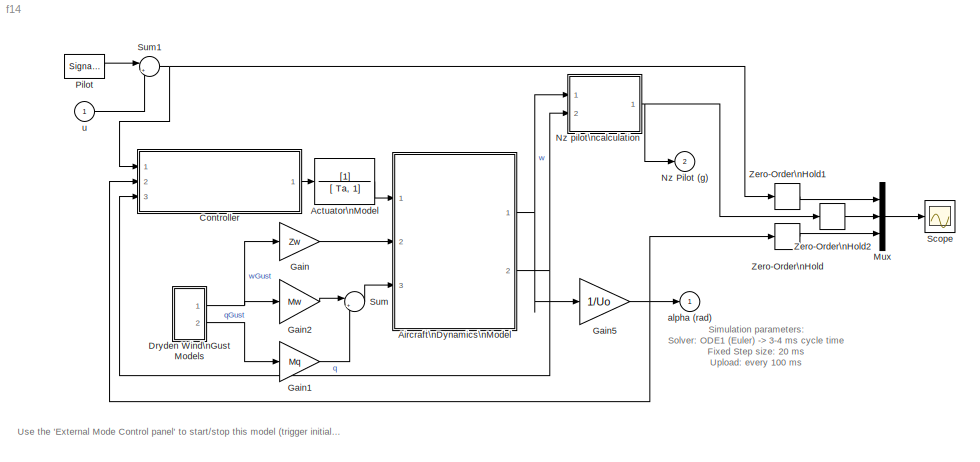
MODEL f14
KIND model
CONFIG PreLoadFcn = f14dat
BLOCK [TransferFcn] Actuator\nModel
  Denominator = [ Ta, 1]
  SID = 2
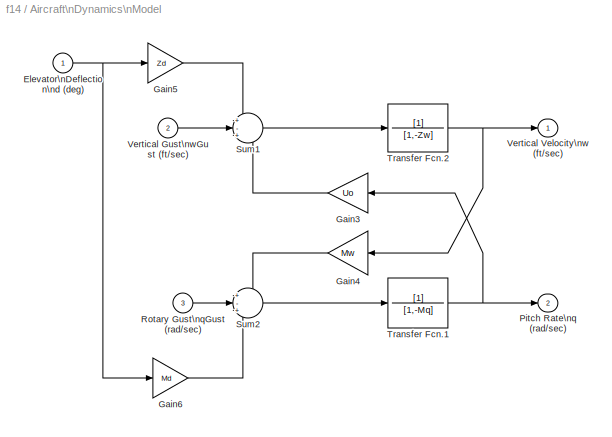
BLOCK [SubSystem] Aircraft\nDynamics\nModel
  Ports = [3, 2]
  RequestExecContextInheritance = off
  SID = 3
BLOCK [Inport] Aircraft\nDynamics\nModel/Elevator\nDeflection\nd (deg)
  IconDisplay = Port number
  SID = 4
BLOCK [Gain] Aircraft\nDynamics\nModel/Gain3
  Gain = Uo
  SID = 7
BLOCK [Gain] Aircraft\nDynamics\nModel/Gain4
  Gain = Mw
  SID = 8
BLOCK [Gain] Aircraft\nDynamics\nModel/Gain5
  Gain = Zd
  SID = 9
BLOCK [Gain] Aircraft\nDynamics\nModel/Gain6
  Gain = Md
  SID = 10
BLOCK [Outport] Aircraft\nDynamics\nModel/Pitch Rate\nq (rad//sec)
  IconDisplay = Port number
  InitialOutput = 0
  Port = 2
  SID = 16
BLOCK [Inport] Aircraft\nDynamics\nModel/Rotary Gust\nqGust (rad//sec)
  IconDisplay = Port number
  Port = 3
  SID = 6
BLOCK [Sum] Aircraft\nDynamics\nModel/Sum1
  IconShape = round
  Inputs = +-+
  Ports = [3, 1]
  SID = 11
BLOCK [Sum] Aircraft\nDynamics\nModel/Sum2
  IconShape = round
  Inputs = +-+
  Ports = [3, 1]
  SID = 12
BLOCK [TransferFcn] Aircraft\nDynamics\nModel/Transfer Fcn.1
  Denominator = [1,-Mq]
  SID = 13
BLOCK [TransferFcn] Aircraft\nDynamics\nModel/Transfer Fcn.2
  Denominator = [1,-Zw]
  SID = 14
BLOCK [Inport] Aircraft\nDynamics\nModel/Vertical Gust\nwGust (ft//sec)
  IconDisplay = Port number
  Port = 2
  SID = 5
BLOCK [Outport] Aircraft\nDynamics\nModel/Vertical Velocity\nw (ft//sec)
  IconDisplay = Port number
  InitialOutput = 0
  SID = 15
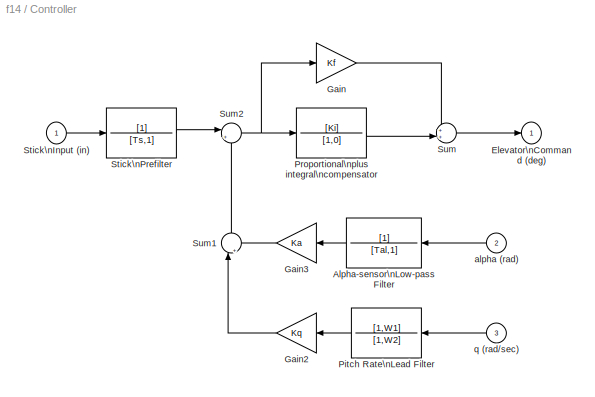
BLOCK [SubSystem] Controller
  Ports = [3, 1]
  RequestExecContextInheritance = off
  SID = 17
BLOCK [TransferFcn] Controller/Alpha-sensor\nLow-pass Filter
  Denominator = [Tal,1]
  SID = 21
BLOCK [Outport] Controller/Elevator\nCommand (deg)
  IconDisplay = Port number
  InitialOutput = 0
  SID = 31
BLOCK [Gain] Controller/Gain
  Gain = Kf
  SID = 22
BLOCK [Gain] Controller/Gain2
  Gain = Kq
  SID = 23
BLOCK [Gain] Controller/Gain3
  Gain = Ka
  SID = 24
BLOCK [TransferFcn] Controller/Pitch Rate\nLead Filter
  Denominator = [1,W2]
  Numerator = [1,W1]
  SID = 25
BLOCK [TransferFcn] Controller/Proportional\nplus integral\ncompensator
  Denominator = [1,0]
  Numerator = [Ki]
  SID = 26
BLOCK [Inport] Controller/Stick\nInput (in)
  IconDisplay = Port number
  SID = 18
BLOCK [TransferFcn] Controller/Stick\nPrefilter
  Denominator = [Ts,1]
  SID = 27
BLOCK [Sum] Controller/Sum
  IconShape = round
  Inputs = ++|
  Ports = [2, 1]
  SID = 28
BLOCK [Sum] Controller/Sum1
  IconShape = round
  Inputs = |++
  Ports = [2, 1]
  SID = 29
BLOCK [Sum] Controller/Sum2
  IconShape = round
  Inputs = |+-
  Ports = [2, 1]
  SID = 30
BLOCK [Inport] Controller/alpha (rad)
  IconDisplay = Port number
  Port = 2
  SID = 19
BLOCK [Inport] Controller/q (rad//sec)
  IconDisplay = Port number
  Port = 3
  SID = 20
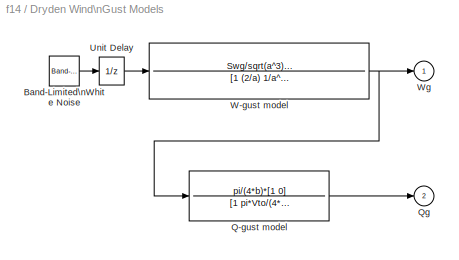
BLOCK [SubSystem] Dryden Wind\nGust Models
  Ports = [0, 2]
  RequestExecContextInheritance = off
  SID = 32
BLOCK [Reference] Dryden Wind\nGust Models/Band-Limited\nWhite Noise  REF=simulink/Sources/Band-Limited\nWhite Noise
  Cov = 1
  FunctionWithSeparateData = off
  Ports = [0, 1]
  RTWMemSecDataConstants = Inherit from model
  RTWMemSecDataInternal = Inherit from model
  RTWMemSecDataParameters = Inherit from model
  RTWMemSecFuncExecute = Inherit from model
  RTWMemSecFuncInitTerm = Inherit from model
  SID = 33
  ShowPortLabels = FromPortIcon
  SourceBlock = simulink/Sources/Band-Limited\nWhite Noise
  SourceProductBaseCode = SL
  SourceProductName = Simulink
  SourceType = Band-Limited White Noise.
  SystemSampleTime = -1
  Ts = 0.1
  VectorParams1D = on
  seed = [23341]
BLOCK [TransferFcn] Dryden Wind\nGust Models/Q-gust model
  Denominator = [1 pi*Vto/(4*b)]
  Numerator = pi/(4*b)*[1 0]
  SID = 34
BLOCK [Outport] Dryden Wind\nGust Models/Qg
  IconDisplay = Port number
  InitialOutput = 0
  Port = 2
  SID = 38
BLOCK [UnitDelay] Dryden Wind\nGust Models/Unit Delay
  SID = 35
  SampleTime = 0.1
BLOCK [TransferFcn] Dryden Wind\nGust Models/W-gust model
  Denominator = [1 (2/a) 1/a^2]
  Numerator = Swg/sqrt(a^3)*[sqrt(3)*a,1]
  SID = 36
BLOCK [Outport] Dryden Wind\nGust Models/Wg
  IconDisplay = Port number
  InitialOutput = 0
  SID = 37
BLOCK [Gain] Gain
  Gain = Zw
  SID = 39
BLOCK [Gain] Gain1
  Gain = Mq
  SID = 40
BLOCK [Gain] Gain2
  Gain = Mw
  SID = 41
BLOCK [Gain] Gain5
  Gain = 1/Uo
  SID = 42
BLOCK [Mux] Mux
  DisplayOption = bar
  Inputs = 3
  Ports = [3, 1]
  SID = 43
BLOCK [Outport] Nz Pilot (g)
  IconDisplay = Port number
  InitialOutput = 0
  Port = 2
  SID = 63
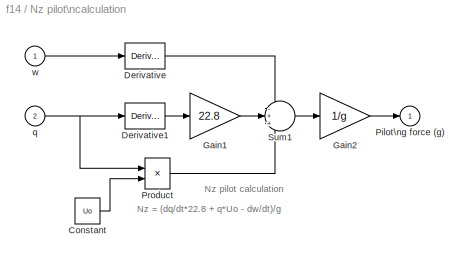
BLOCK [SubSystem] Nz pilot\ncalculation
  Ports = [2, 1]
  RequestExecContextInheritance = off
  SID = 44
BLOCK [Constant] Nz pilot\ncalculation/Constant
  SID = 47
  Value = Uo
BLOCK [Derivative] Nz pilot\ncalculation/Derivative
  SID = 48
BLOCK [Derivative] Nz pilot\ncalculation/Derivative1
  SID = 49
BLOCK [Gain] Nz pilot\ncalculation/Gain1
  Gain = 22.8
  SID = 50
BLOCK [Gain] Nz pilot\ncalculation/Gain2
  Gain = 1/g
  SID = 51
BLOCK [Outport] Nz pilot\ncalculation/Pilot\ng force (g)
  IconDisplay = Port number
  InitialOutput = 0
  SID = 54
BLOCK [Product] Nz pilot\ncalculation/Product
  Ports = [2, 1]
  RndMeth = Floor
  SID = 52
BLOCK [Sum] Nz pilot\ncalculation/Sum1
  IconShape = round
  Inputs = -++
  Ports = [3, 1]
  SID = 53
BLOCK [Inport] Nz pilot\ncalculation/q
  IconDisplay = Port number
  Port = 2
  SID = 46
BLOCK [Inport] Nz pilot\ncalculation/w
  IconDisplay = Port number
  SID = 45
BLOCK [SignalGenerator] Pilot
  Frequency = 0.500000
  Ports = [0, 1]
  SID = 55
  Units = rad/sec
  WaveForm = square
BLOCK [Scope] Scope
  Floating = off
  NumInputPorts = 1
  Ports = [1]
  SID = 56
  ScopeSpecificationString = C++SS(StrPVP('Location','[791, 422, 1181, 720]'),StrPVP('Open','off'),MxPVP('AxesTitles',54,'struct(''axes1'',''%<SignalLabel>'')'),StrPVP('TimeRange','20'),StrPVP('YMin','-15'),StrPVP('YMax','15'),StrPVP('DataFormat','StructureWithTime'),StrPVP('LimitDataPoints','on'),StrPVP('Decimation','1'),StrPVP('BlockParamSampleInput','off'))
BLOCK [Sum] Sum
  IconShape = round
  Inputs = |++
  Ports = [2, 1]
  SID = 57
BLOCK [Sum] Sum1
  IconShape = round
  Inputs = |++
  Ports = [2, 1]
  SID = 58
BLOCK [ZeroOrderHold] Zero-Order\nHold
  SID = 59
  SampleTime = 0.1
BLOCK [ZeroOrderHold] Zero-Order\nHold1
  SID = 60
  SampleTime = 0.1
BLOCK [ZeroOrderHold] Zero-Order\nHold2
  SID = 61
  SampleTime = 0.1
BLOCK [Outport] alpha (rad)
  IconDisplay = Port number
  InitialOutput = 0
  SID = 62
BLOCK [Inport] u
  IconDisplay = Port number
  SID = 1
ANNOTATION (root): Simulation parameters:\nSolver: ODE1 (Euler) -> 3-4 ms cycle time\nFixed Step size: 20 ms\nUpload: every 100 ms
ANNOTATION (root): Use the 'External Mode Control panel' to start/stop this model (trigger initially unarmed)
ANNOTATION Nz pilot\ncalculation: Nz = (dq/dt*22.8 + q*Uo - dw/dt)/g
ANNOTATION Nz pilot\ncalculation: Nz pilot calculation
LINE Actuator\nModel:1 -> Aircraft\nDynamics\nModel:1
NET Aircraft\nDynamics\nModel/Elevator\nDeflection\nd (deg):1 -> Aircraft\nDynamics\nModel/Gain5:1, Aircraft\nDynamics\nModel/Gain6:1
LINE Aircraft\nDynamics\nModel/Gain3:1 -> Aircraft\nDynamics\nModel/Sum1:3
LINE Aircraft\nDynamics\nModel/Gain4:1 -> Aircraft\nDynamics\nModel/Sum2:1
LINE Aircraft\nDynamics\nModel/Gain5:1 -> Aircraft\nDynamics\nModel/Sum1:1
LINE Aircraft\nDynamics\nModel/Gain6:1 -> Aircraft\nDynamics\nModel/Sum2:3
LINE Aircraft\nDynamics\nModel/Rotary Gust\nqGust (rad//sec):1 -> Aircraft\nDynamics\nModel/Sum2:2
LINE Aircraft\nDynamics\nModel/Sum1:1 -> Aircraft\nDynamics\nModel/Transfer Fcn.2:1
LINE Aircraft\nDynamics\nModel/Sum2:1 -> Aircraft\nDynamics\nModel/Transfer Fcn.1:1
NET Aircraft\nDynamics\nModel/Transfer Fcn.1:1 -> Aircraft\nDynamics\nModel/Gain3:1, Aircraft\nDynamics\nModel/Pitch Rate\nq (rad//sec):1
NET Aircraft\nDynamics\nModel/Transfer Fcn.2:1 -> Aircraft\nDynamics\nModel/Gain4:1, Aircraft\nDynamics\nModel/Vertical Velocity\nw (ft//sec):1
LINE Aircraft\nDynamics\nModel/Vertical Gust\nwGust (ft//sec):1 -> Aircraft\nDynamics\nModel/Sum1:2
NET Aircraft\nDynamics\nModel:1 -> Gain5:1, Nz pilot\ncalculation:1
NET Aircraft\nDynamics\nModel:2 -> Controller:3, Nz pilot\ncalculation:2
LINE Controller/Alpha-sensor\nLow-pass Filter:1 -> Controller/Gain3:1
LINE Controller/Gain2:1 -> Controller/Sum1:1
LINE Controller/Gain3:1 -> Controller/Sum1:2
LINE Controller/Gain:1 -> Controller/Sum:1
LINE Controller/Pitch Rate\nLead Filter:1 -> Controller/Gain2:1
LINE Controller/Proportional\nplus integral\ncompensator:1 -> Controller/Sum:2
LINE Controller/Stick\nInput (in):1 -> Controller/Stick\nPrefilter:1
LINE Controller/Stick\nPrefilter:1 -> Controller/Sum2:1
LINE Controller/Sum1:1 -> Controller/Sum2:2
NET Controller/Sum2:1 -> Controller/Gain:1, Controller/Proportional\nplus integral\ncompensator:1
LINE Controller/Sum:1 -> Controller/Elevator\nCommand (deg):1
LINE Controller/alpha (rad):1 -> Controller/Alpha-sensor\nLow-pass Filter:1
LINE Controller/q (rad//sec):1 -> Controller/Pitch Rate\nLead Filter:1
LINE Controller:1 -> Actuator\nModel:1
LINE Dryden Wind\nGust Models/Band-Limited\nWhite Noise:1 -> Dryden Wind\nGust Models/Unit Delay:1
LINE Dryden Wind\nGust Models/Q-gust model:1 -> Dryden Wind\nGust Models/Qg:1
LINE Dryden Wind\nGust Models/Unit Delay:1 -> Dryden Wind\nGust Models/W-gust model:1
NET Dryden Wind\nGust Models/W-gust model:1 -> Dryden Wind\nGust Models/Q-gust model:1, Dryden Wind\nGust Models/Wg:1
NET Dryden Wind\nGust Models:1 -> Gain2:1, Gain:1
LINE Dryden Wind\nGust Models:2 -> Gain1:1
LINE Gain1:1 -> Sum:2
LINE Gain2:1 -> Sum:1
NET Gain5:1 -> Controller:2, Zero-Order\nHold:1, alpha (rad):1
LINE Gain:1 -> Aircraft\nDynamics\nModel:2
LINE Mux:1 -> Scope:1
LINE Nz pilot\ncalculation/Constant:1 -> Nz pilot\ncalculation/Product:2
LINE Nz pilot\ncalculation/Derivative1:1 -> Nz pilot\ncalculation/Gain1:1
LINE Nz pilot\ncalculation/Derivative:1 -> Nz pilot\ncalculation/Sum1:1
LINE Nz pilot\ncalculation/Gain1:1 -> Nz pilot\ncalculation/Sum1:2
LINE Nz pilot\ncalculation/Gain2:1 -> Nz pilot\ncalculation/Pilot\ng force (g):1
LINE Nz pilot\ncalculation/Product:1 -> Nz pilot\ncalculation/Sum1:3
LINE Nz pilot\ncalculation/Sum1:1 -> Nz pilot\ncalculation/Gain2:1
NET Nz pilot\ncalculation/q:1 -> Nz pilot\ncalculation/Derivative1:1, Nz pilot\ncalculation/Product:1
LINE Nz pilot\ncalculation/w:1 -> Nz pilot\ncalculation/Derivative:1
NET Nz pilot\ncalculation:1 -> Nz Pilot (g):1, Zero-Order\nHold2:1
LINE Pilot:1 -> Sum1:1
NET Sum1:1 -> Controller:1, Zero-Order\nHold1:1
LINE Sum:1 -> Aircraft\nDynamics\nModel:3
LINE Zero-Order\nHold1:1 -> Mux:1
LINE Zero-Order\nHold2:1 -> Mux:2
LINE Zero-Order\nHold:1 -> Mux:3
LINE u:1 -> Sum1:2
note: NET lines group one-source signal fan-out (src -> all destinations, sorted); 1:1 wires keep LINE
